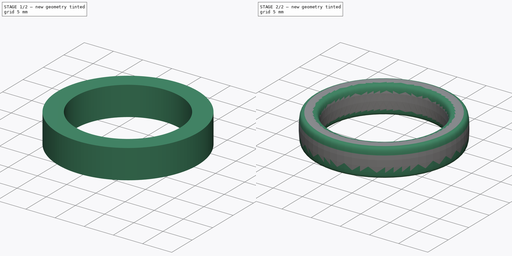
[diagram: build sequence overview — one tinted view per stage of 2, left to right]
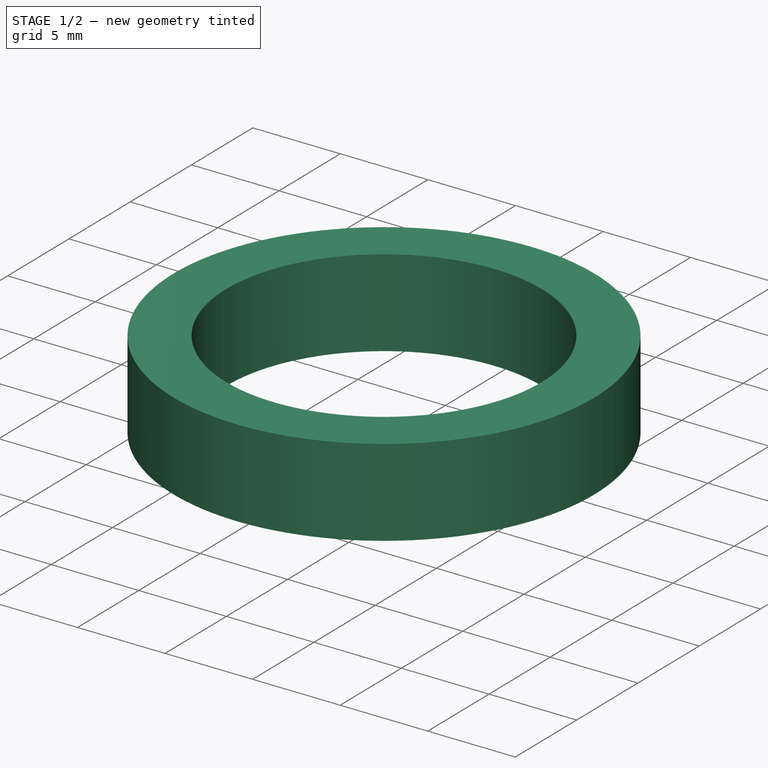
[diagram: stage 1 of 2 — iso view after this stage's code; geometry added in this stage tinted green]
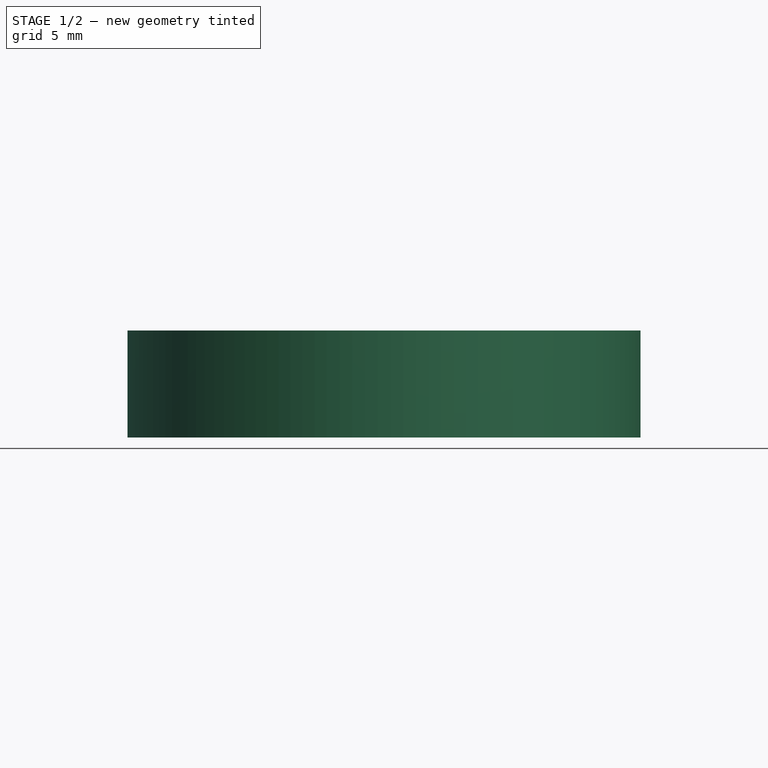
[diagram: stage 1 of 2 — front view after this stage's code; geometry added in this stage tinted green]
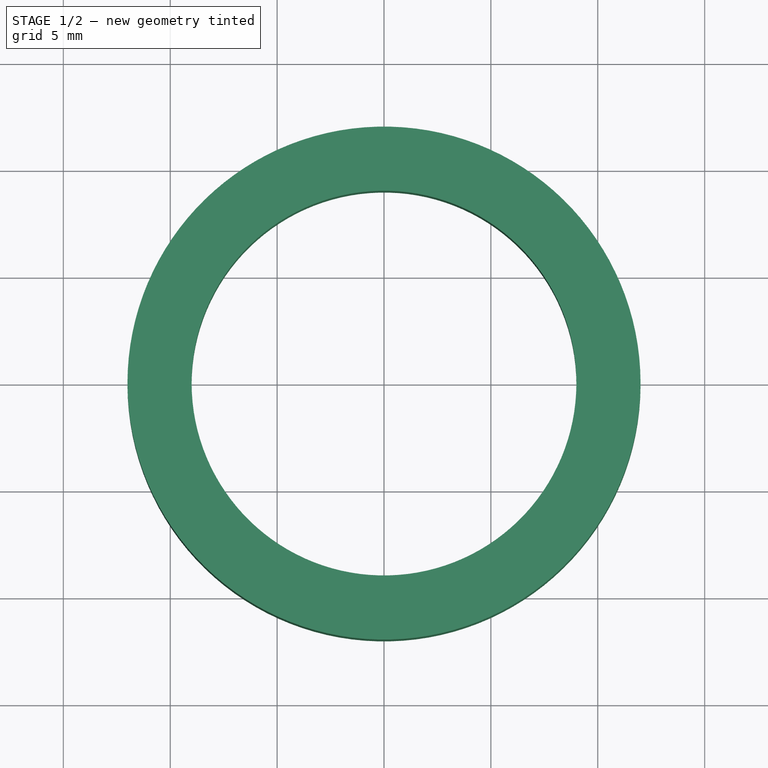
[diagram: stage 1 of 2 — top view after this stage's code; geometry added in this stage tinted green]
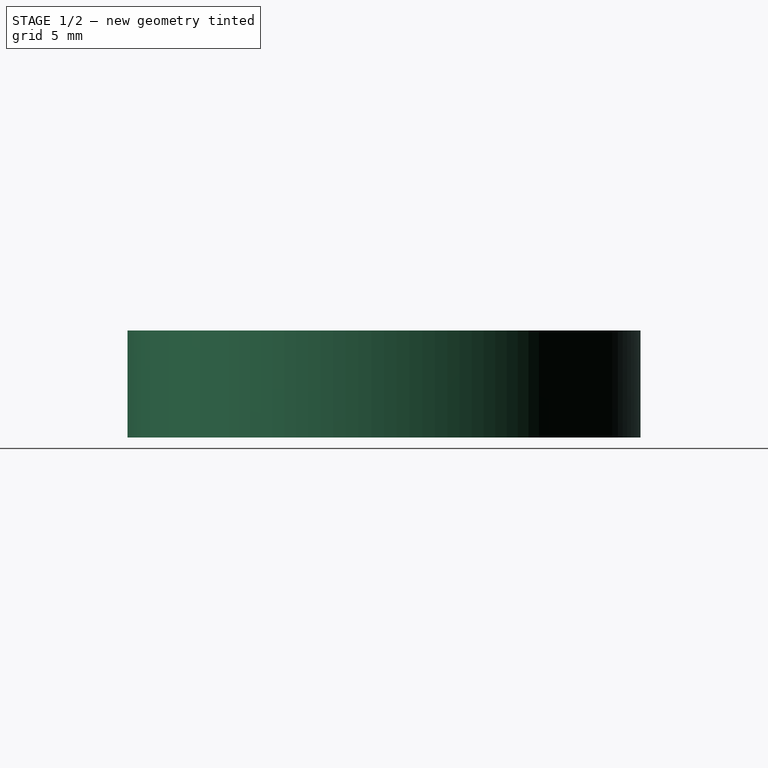
[diagram: stage 1 of 2 — right view after this stage's code; geometry added in this stage tinted green]
FCSTD DOCUMENT  (FreeCAD 0.20R29603 (Git))
Label: ring
License: All rights reserved
LicenseURL: http://en.wikipedia.org/wiki/All_rights_reserved
objects: Sketcher::SketchObject×2, Spreadsheet::Sheet×1, PartDesign::Revolution×1, PartDesign::Groove×1, PartDesign::Body×1
note: 7 computed .brp shape members not serialized (recipe doc carries the construction recipe); baked Part::Feature solids carry a one-line shape summary decoded from their .brp

FEATURE [Spreadsheet::Sheet] Spreadsheet
  cells = A1=Ring diameter; B1(ring_diameter)=18; A2=Ring width; B2(ring_width)=5; A3=Ring thickness; B3(ring_thickness)=3; A4=Spline corner distance; B4(spline_distance)=0.5
FEATURE [Sketcher::SketchObject] Sketch
  FullyConstrained = true
  MapMode = 5
  Placement = pos=(0,0,0) rot=(1,0,0;1.5708rad)
  Support = -> [XZ_Plane]
  expr: Constraints[13] = <<Spreadsheet>>.ring_thickness
  expr: Constraints[2] = <<Spreadsheet>>.ring_diameter / 2
  expr: Constraints[5] = <<Spreadsheet>>.ring_width
  sketch-geometry (5):
    g0: LineSegment StartX=0 StartY=0 StartZ=0 EndX=-9 EndY=0 EndZ=0
    g1: LineSegment StartX=-9 StartY=2.5 StartZ=0 EndX=-9 EndY=-2.5 EndZ=0
    g2: LineSegment StartX=-9 StartY=2.5 StartZ=0 EndX=-12 EndY=2.5 EndZ=0
    g3: LineSegment StartX=-12 StartY=2.5 StartZ=0 EndX=-12 EndY=-2.5 EndZ=0
    g4: LineSegment StartX=-12 StartY=-2.5 StartZ=0 EndX=-9 EndY=-2.5 EndZ=0
  constraints (14):
    c: Coincident(g0,g-1)
    c: Horizontal(g0)
    c: Distance(g0) = 9
    c: Vertical(g1)
    c: Symmetric(g1,g1,g0)
    c: Distance(g1) = 5
    c: Coincident(g1,g2)
    c: Horizontal(g2)
    c: Coincident(g2,g3)
    c: Vertical(g3)
    c: Coincident(g3,g4)
    c: Coincident(g4,g1)
    c: Horizontal(g4)
    c: Distance(g2) = 3
FEATURE [PartDesign::Revolution] Revolution  label="ring_body"
  Angle = 360
  Axis = (0,2e-16,1)
  Base = (0,0,0)
  Placement = pos=(0,0,0) rot=(1,0,0;1.5708rad)
  Profile = -> Sketch
  ReferenceAxis = -> Sketch [V_Axis]
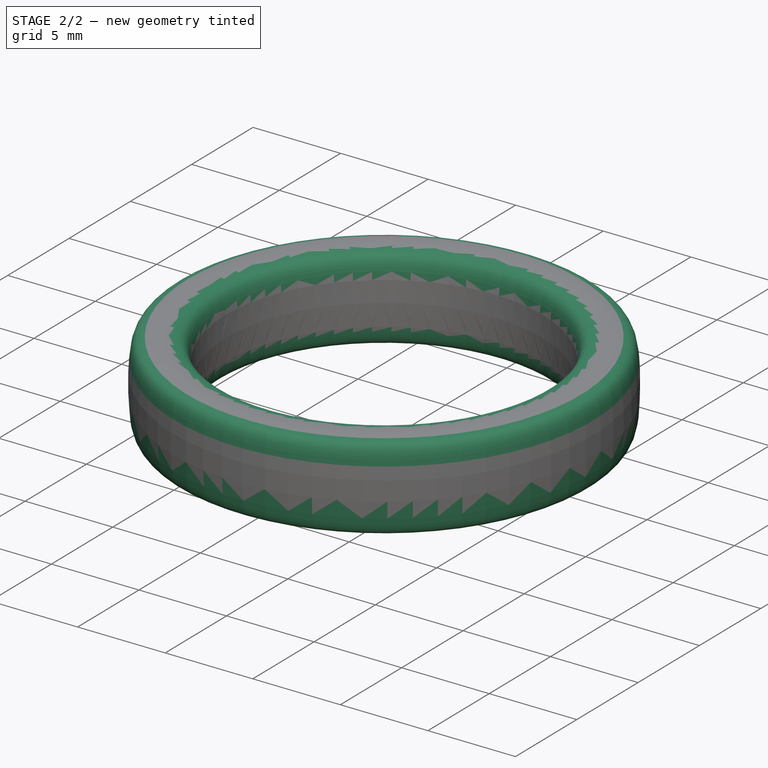
[diagram: stage 2 of 2 — iso view after this stage's code; geometry added in this stage tinted green]
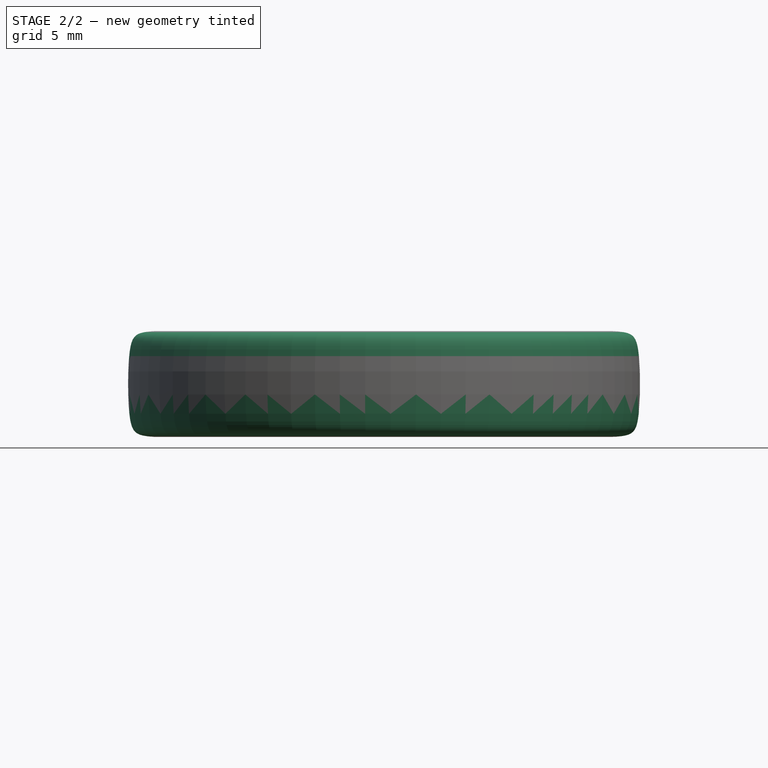
[diagram: stage 2 of 2 — front view after this stage's code; geometry added in this stage tinted green]
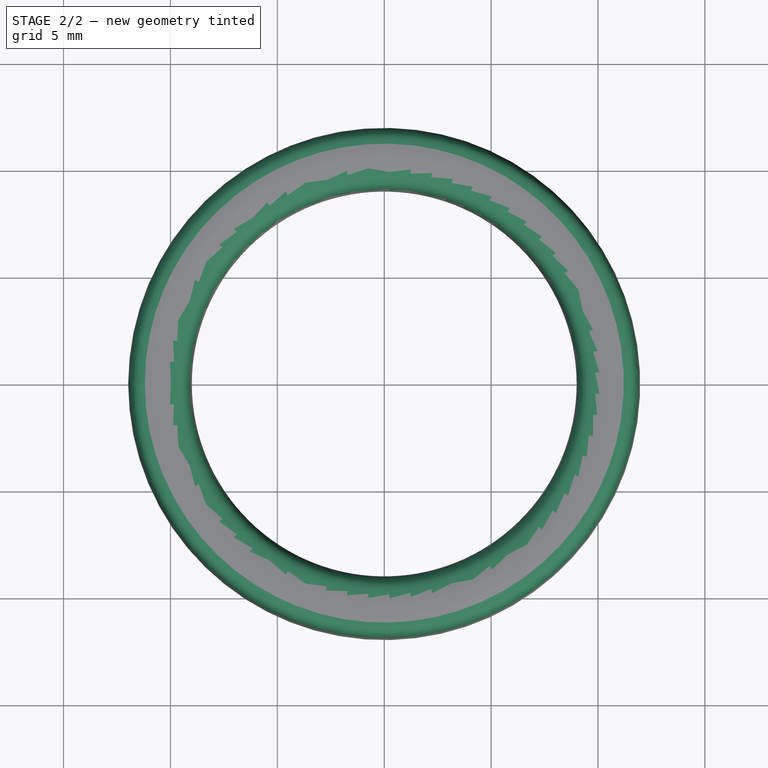
[diagram: stage 2 of 2 — top view after this stage's code; geometry added in this stage tinted green]
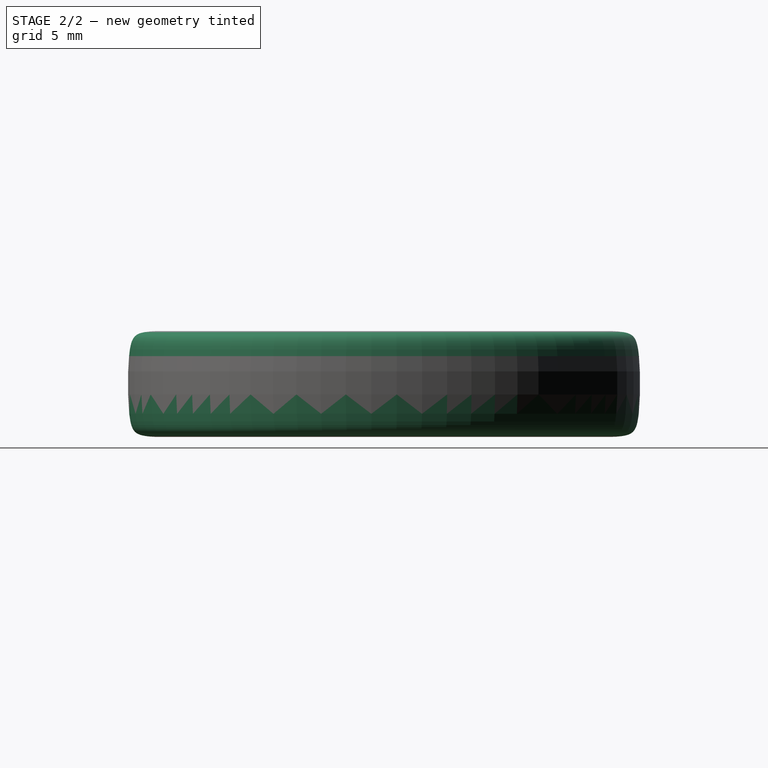
[diagram: stage 2 of 2 — right view after this stage's code; geometry added in this stage tinted green]
FEATURE [Sketcher::SketchObject] Sketch001
  FullyConstrained = true
  MapMode = 5
  Placement = pos=(0,0,0) rot=(1,0,0;1.5708rad)
  Support = -> [XZ_Plane]
  expr: Constraints[11] = <<Spreadsheet>>.ring_width
  expr: Constraints[12] = <<Spreadsheet>>.ring_thickness
  expr: Constraints[17] = <<Spreadsheet>>.spline_distance
  expr: Constraints[18] = <<Spreadsheet>>.spline_distance
  expr: Constraints[19] = <<Spreadsheet>>.spline_distance
  expr: Constraints[25] = <<Spreadsheet>>.spline_distance
  expr: Constraints[26] = <<Spreadsheet>>.spline_distance
  expr: Constraints[27] = <<Spreadsheet>>.spline_distance
  expr: Constraints[28] = <<Spreadsheet>>.spline_distance
  expr: Constraints[29] = <<Spreadsheet>>.spline_distance
  expr: Constraints[2] = <<Spreadsheet>>.ring_diameter / 2
  sketch-geometry (36):
    g0: LineSegment StartX=0 StartY=0 StartZ=0 EndX=-9 EndY=0 EndZ=0
    g1: LineSegment StartX=-12 StartY=2.5 StartZ=0 EndX=-9 EndY=2.5 EndZ=0
    g2: LineSegment StartX=-9 StartY=2.5 StartZ=0 EndX=-9 EndY=-2.5 EndZ=0
    g3: LineSegment StartX=-9 StartY=-2.5 StartZ=0 EndX=-12 EndY=-2.5 EndZ=0
    g4: LineSegment StartX=-12 StartY=-2.5 StartZ=0 EndX=-12 EndY=2.5 EndZ=0
    g5: GeomPoint X=-9.5 Y=2.5 Z=0
    g6: GeomPoint X=-11.5 Y=2.5 Z=0
    g7: GeomPoint X=-12 Y=2 Z=0
    g8: GeomPoint X=-9 Y=2 Z=0
    g9: GeomPoint X=-9 Y=-2 Z=0
    g10: GeomPoint X=-9.5 Y=-2.5 Z=0
    g11: GeomPoint X=-12 Y=-2 Z=0
    g12: GeomPoint X=-11.5 Y=-2.5 Z=0
    g13: LineSegment StartX=-9 StartY=2.5 StartZ=0 EndX=-12 EndY=2.5 EndZ=0
    g14: LineSegment StartX=-12 StartY=2.5 StartZ=0 EndX=-12 EndY=-2.5 EndZ=0
    g15: LineSegment StartX=-12 StartY=-2.5 StartZ=0 EndX=-9 EndY=-2.5 EndZ=0
    g16: LineSegment StartX=-9 StartY=-2.5 StartZ=0 EndX=-9 EndY=2.5 EndZ=0
    g17-g26: Circle x10 (B-spline internal-alignment scaffolding for g27; pole/knot coordinates omitted)
    g27: BSplineCurve PolesCount=10 KnotsCount=8 Degree=3 IsPeriodic=0
    g28-g35: GeomPoint x8 (B-spline internal-alignment scaffolding for g27; pole/knot coordinates omitted)
  constraints (62):
    c: Coincident(g0,g-1)
    c: PointOnObject(g0,g-1)
    c: Distance(g0) = 9
    c: Coincident(g2,g3)
    c: Coincident(g3,g4)
    c: Coincident(g4,g1)
    c: Horizontal(g1)
    c: Horizontal(g3)
    c: Vertical(g2)
    c: Vertical(g4)
    c: Symmetric(g1,g2,g0)
    c: Distance(g2) = 5
    c: Distance(g1) = 3
    c: Coincident(g1,g2)
    c: PointOnObject(g5,g1)
    c: PointOnObject(g6,g1)
    c: PointOnObject(g7,g4)
    c: Distance(g6,g1) = 0.5
    c: Distance(g5,g1) = 0.5
    c: Distance(g7,g1) = 0.5
    c: PointOnObject(g8,g2)
    c: PointOnObject(g9,g2)
    c: PointOnObject(g10,g3)
    c: PointOnObject(g11,g4)
    c: PointOnObject(g12,g3)
    c: Distance(g8,g1) = 0.5
    c: Distance(g9,g2) = 0.5
    c: Distance(g10,g2) = 0.5
    c: Distance(g12,g3) = 0.5
    c: Distance(g3,g11) = 0.5
    c: Coincident(g13,g14)
    c: Coincident(g14,g15)
    c: Coincident(g15,g16)
    c: Coincident(g16,g13)
    c: Horizontal(g13)
    c: Horizontal(g15)
    c: Vertical(g14)
    c: Vertical(g16)
    c: Coincident(g13,g1)
    c: Coincident(g14,g3)
    c: Weight(g17) = 1
    c: Coincident(g27,g0)
    c: Equal(g17,g18)
    c: Coincident(g18,g8)
    c: Equal(g17,g19)
    c: Coincident(g19,g5)
    c: Equal(g17,g20)
    c: Coincident(g20,g6)
    c: Equal(g17,g21)
    c: Coincident(g21,g7)
    c: Equal(g17,g22)
    c: Coincident(g22,g11)
    c: Equal(g17,g23)
    c: Coincident(g23,g12)
    c: Equal(g17,g24)
    c: Coincident(g24,g10)
    c: Equal(g17,g25)
    c: Coincident(g25,g9)
    c: Equal(g17,g26)
    c: Coincident(g27,g0)
    c: InternalAlignment(g17-g26 -> g27) x10
    c: InternalAlignment(g28-g35 -> g27) x8
FEATURE [PartDesign::Groove] Groove
  Angle = 360
  Axis = (0,2e-16,1)
  Base = (0,0,0)
  BaseFeature = -> Revolution
  Placement = pos=(0,0,0) rot=(1,0,0;1.5708rad)
  Profile = -> Sketch001
  ReferenceAxis = -> Sketch001 [V_Axis]
  Reversed = true
FEATURE [PartDesign::Body] Body
  Group = -> [Sketch,Revolution,Sketch001,Groove]
  Origin = -> Origin
  Tip = -> Groove
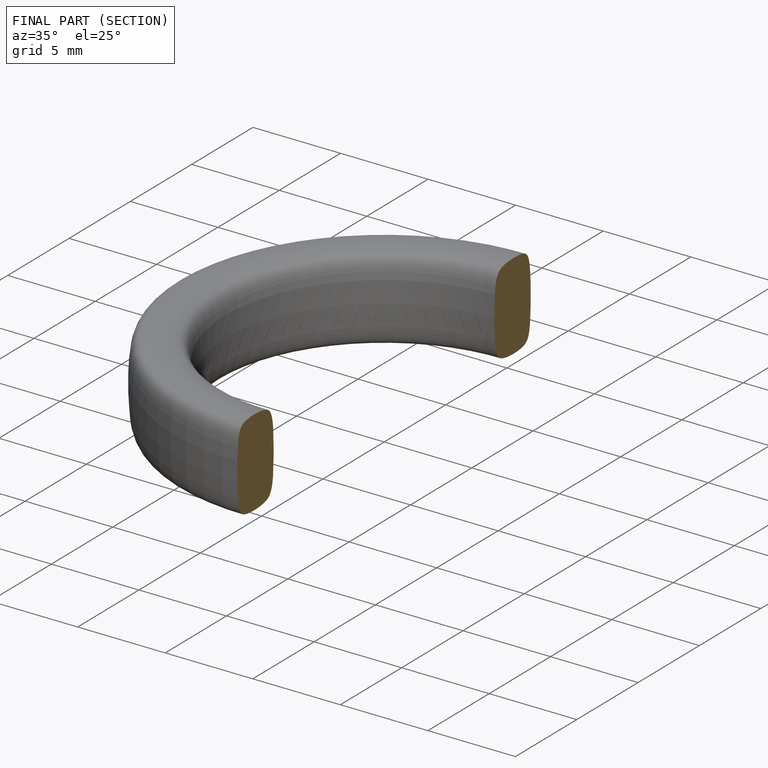
[diagram: finished part — half-section view (interior)]
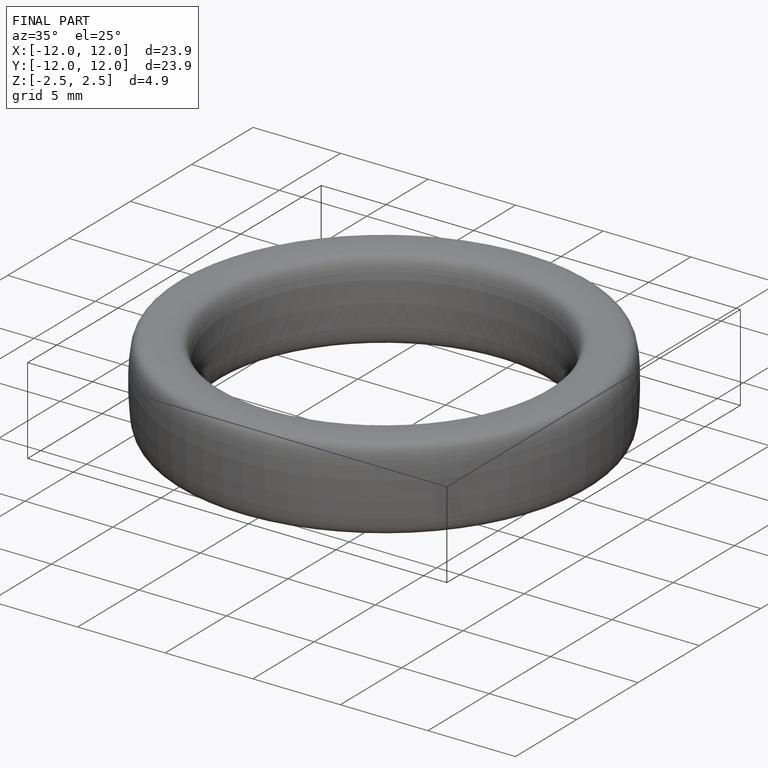
[diagram: finished part — iso view with bounding-box wireframe]
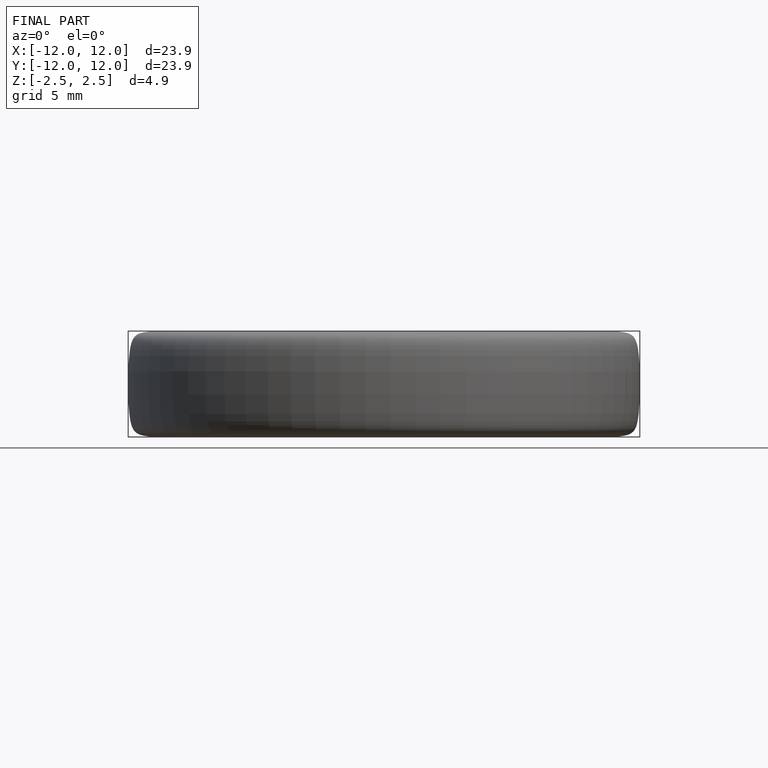
[diagram: finished part — front view with bounding-box wireframe]
